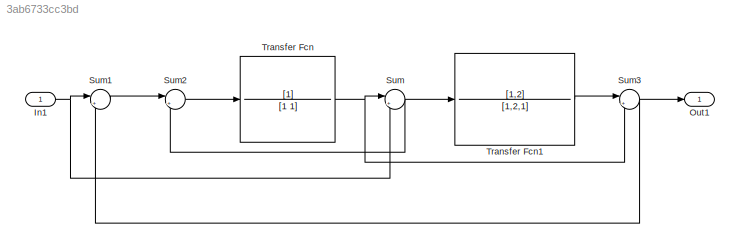
MODEL slx_3ab6733cc3bd
KIND model
CONFIG AbsTol = auto
CONFIG EnableMultiTasking = off
CONFIG FixedStep = auto
CONFIG MaxStep = auto
CONFIG MinStep = auto
CONFIG RelTol = 1e-3
CONFIG SampleTimeConstraint = Unconstrained
CONFIG SolverName = VariableStepAuto
CONFIG StartTime = 0.0
CONFIG StopTime = 10.0
BLOCK [Inport] In1
BLOCK [Outport] Out1
BLOCK [Sum] Sum
  Inputs = |++
BLOCK [Sum] Sum1
  Inputs = |+-
BLOCK [Sum] Sum2
  Inputs = |+-
BLOCK [Sum] Sum3
  Inputs = |++
BLOCK [TransferFcn] Transfer Fcn
  Denominator = [1 1]
BLOCK [TransferFcn] Transfer Fcn1
  Denominator = [1,2,1]
  Numerator = [1,2]
NET In1:1 -> Sum1:1, Sum:2
LINE Sum1:1 -> Sum2:1
LINE Sum2:1 -> Transfer Fcn:1
NET Sum3:1 -> Out1:1, Sum1:2
NET Sum:1 -> Sum2:2, Transfer Fcn1:1
LINE Transfer Fcn1:1 -> Sum3:1
NET Transfer Fcn:1 -> Sum3:2, Sum:1
note: NET lines group one-source signal fan-out (src -> all destinations, sorted); 1:1 wires keep LINE
